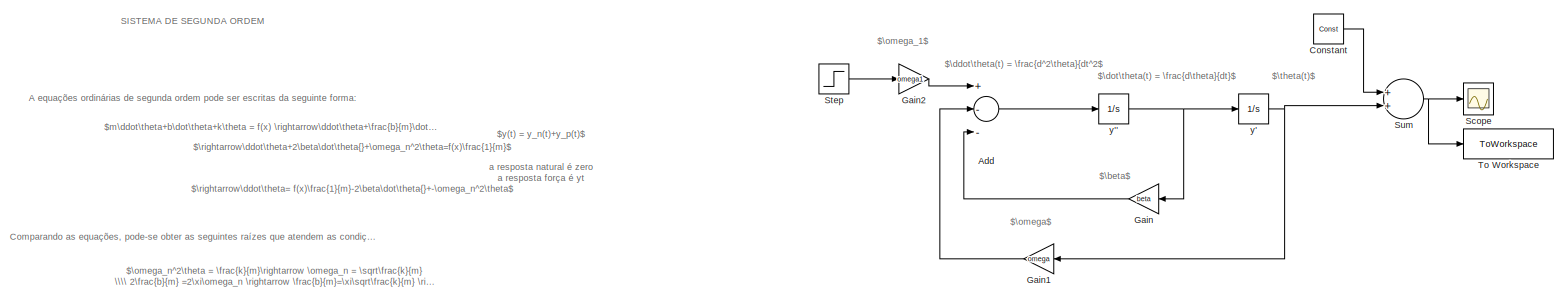
[diagram: root canvas - part 1/1, most of the canvas]
MODEL slx_a988f38eacb1
KIND model
CONFIG AbsTol = auto
CONFIG EnableMultiTasking = off
CONFIG FixedStep = auto
CONFIG MaxStep = tStepMax
CONFIG MinStep = auto
CONFIG RelTol = 1e-3
CONFIG SampleTimeConstraint = Unconstrained
CONFIG Solver = VariableStepAuto
CONFIG SolverName = VariableStepAuto
CONFIG StartTime = 0.0
CONFIG StopTime = tfinal
BLOCK [Sum] Add
  InputSameDT = off
  Inputs = +--
  OutDataTypeStr = Inherit: Inherit via internal rule
  Ports = [3, 1]
  SaturateOnIntegerOverflow = off
BLOCK [Constant] Constant
  Value = Const
BLOCK [Gain] Gain
  Gain = beta
  OutDataTypeStr = Inherit: Inherit via internal rule
  ParamDataTypeStr = Inherit: Inherit via internal rule
  SaturateOnIntegerOverflow = off
BLOCK [Gain] Gain1
  Gain = omega
  OutDataTypeStr = Inherit: Inherit via internal rule
  ParamDataTypeStr = Inherit: Inherit via internal rule
  SaturateOnIntegerOverflow = off
BLOCK [Gain] Gain2
  Gain = omega1
  OutDataTypeStr = Inherit: Inherit via internal rule
  ParamDataTypeStr = Inherit: Inherit via internal rule
  SaturateOnIntegerOverflow = off
BLOCK [Scope] Scope
  Floating = off
  NumInputPorts = 1
  Ports = [1]
  ScopeSpecificationString = Simulink.scopes.TimeScopeBlockCfg('CurrentConfiguration', extmgr.ConfigurationSet(extmgr.Configuration('Core','General UI',true),extmgr.Configuration('Core','Source UI',true),extmgr.Configuration('Sources','WiredSimulink',true),extmgr.Configuration('Visuals','Time Domain',true,'SerializedDisplays',{struct('MinYLimReal','-0.005','MaxYLimReal','0.045','YLabelReal','','MinYLimMag','0.00000','MaxYLimM...<+1311ch>
BLOCK [Step] Step
  SampleTime = 0
BLOCK [Sum] Sum
  InputSameDT = off
  OutDataTypeStr = Inherit: Inherit via internal rule
  Ports = [2, 1]
  SaturateOnIntegerOverflow = off
BLOCK [ToWorkspace] To Workspace
  FixptAsFi = on
  MaxDataPoints = inf
  Ports = [1]
  SampleTime = -1
  Save2DSignal = 2-D array (concatenate along first dimension)
  VariableName = simout
BLOCK [Integrator] y'
  InitialCondition = theta0
  Ports = [1, 1]
BLOCK [Integrator] y''
  InitialCondition = thetaDot0
  Ports = [1, 1]
ANNOTATION (root): A equações ordinárias de segunda ordem pode ser escritas da seguinte forma:
ANNOTATION (root): Comparando as equações, pode-se obter as seguintes raízes que atendem as condições:
ANNOTATION (root): a resposta natural é zero a resposta força é yt
ANNOTATION (root): SISTEMA DE SEGUNDA ORDEM
ANNOTATION (root): $\ddot\theta(t) = \frac{d^2\theta}{dt^2$
ANNOTATION (root): $\dot\theta(t) = \frac{d\theta}{dt}$
ANNOTATION (root): $\theta(t)$
ANNOTATION (root): $\beta$
ANNOTATION (root): $\omega$
ANNOTATION (root): $\omega_1$
ANNOTATION (root): $\omega_n^2\theta = \frac{k}{m}\rightarrow \omega_n = \sqrt\frac{k}{m} \\\\ 2\frac{b}{m} =2\xi\omega_n \rightarrow \frac{b}{m}=\xi\sqrt\frac{k}{m} \rightarrow \xi = \frac{b\sqrt m \sqrt k}{mk}$
ANNOTATION (root): $\rightarrow\ddot\theta+2\beta\dot\theta{}+\omega_n^2\theta=f(x)\frac{1}{m}$
ANNOTATION (root): $\rightarrow\ddot\theta= f(x)\frac{1}{m}-2\beta\dot\theta{}+-\omega_n^2\theta$
ANNOTATION (root): $m\ddot\theta+b\dot\theta+k\theta = f(x) \rightarrow\ddot\theta+\frac{b}{m}\dot\theta{}+\frac{k}{m}\theta=f(x)\frac{1}{m}$
ANNOTATION (root): $y(t) = y_n(t)+y_p(t)$
LINE Add:1 -> y'':1
LINE Constant:1 -> Sum:1
LINE Gain1:1 -> Add:2
LINE Gain2:1 -> Add:1
LINE Gain:1 -> Add:3
LINE Step:1 -> Gain2:1
NET Sum:1 -> Scope:1, To Workspace:1
NET y'':1 -> Gain:1, y':1
NET y':1 -> Gain1:1, Sum:2
note: NET lines group one-source signal fan-out (src -> all destinations, sorted); 1:1 wires keep LINE
